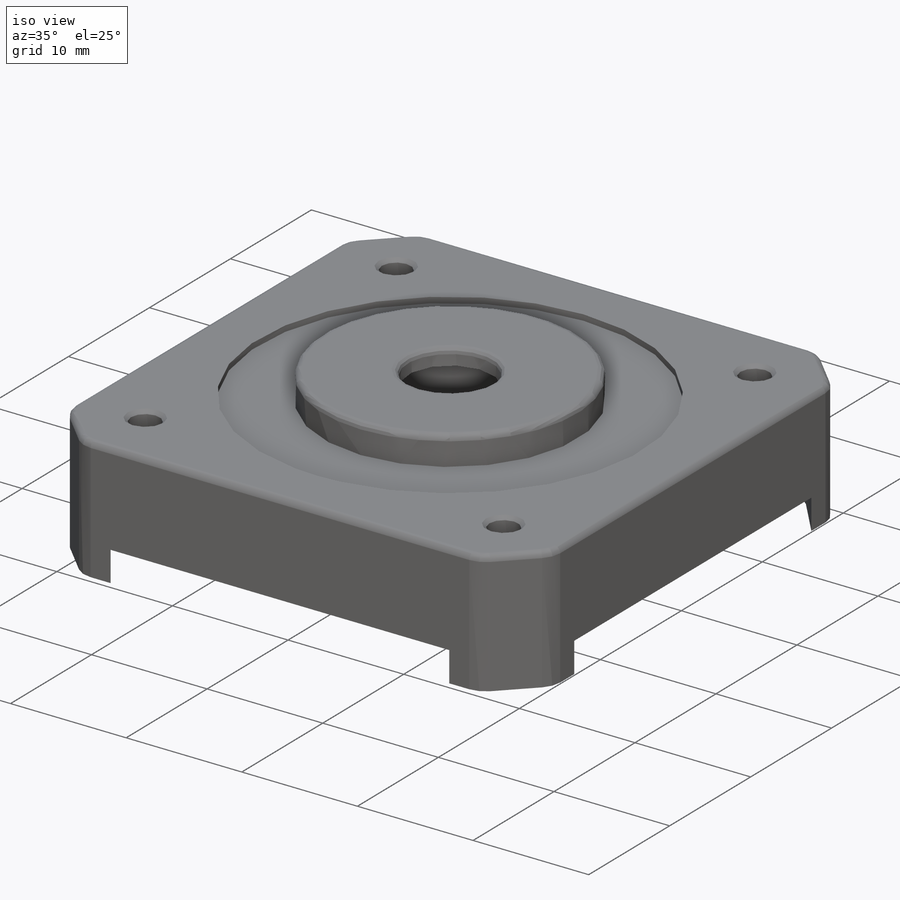
[diagram: iso view]
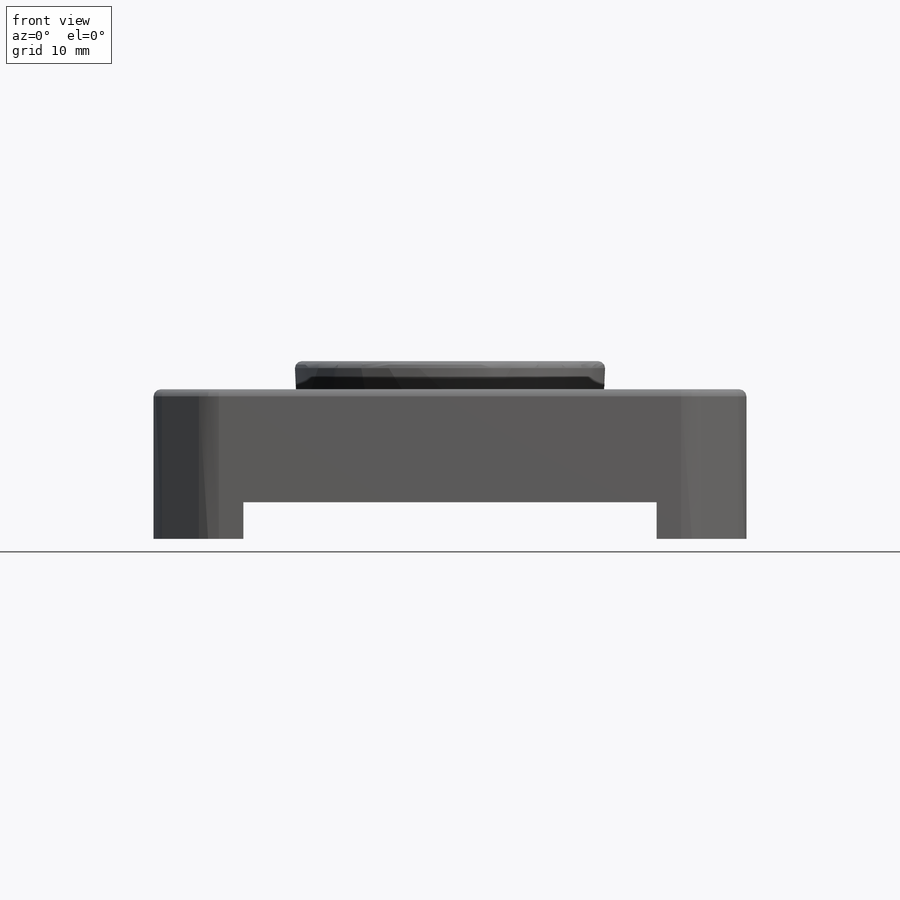
[diagram: front view]
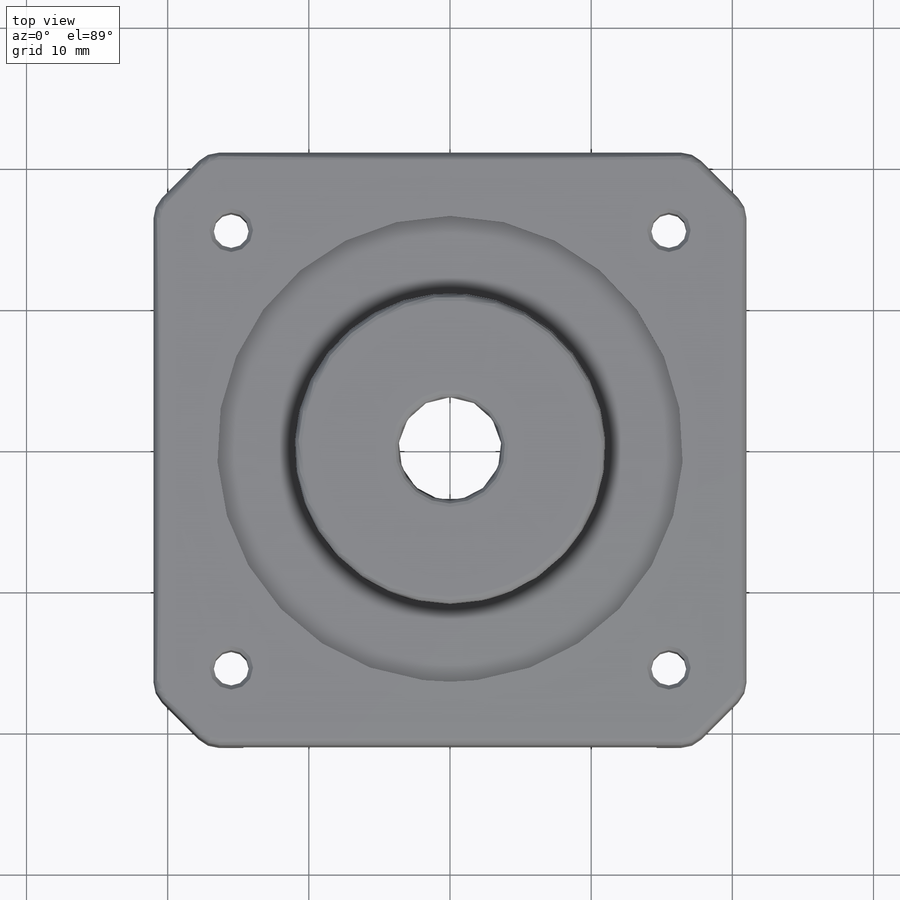
[diagram: top view]
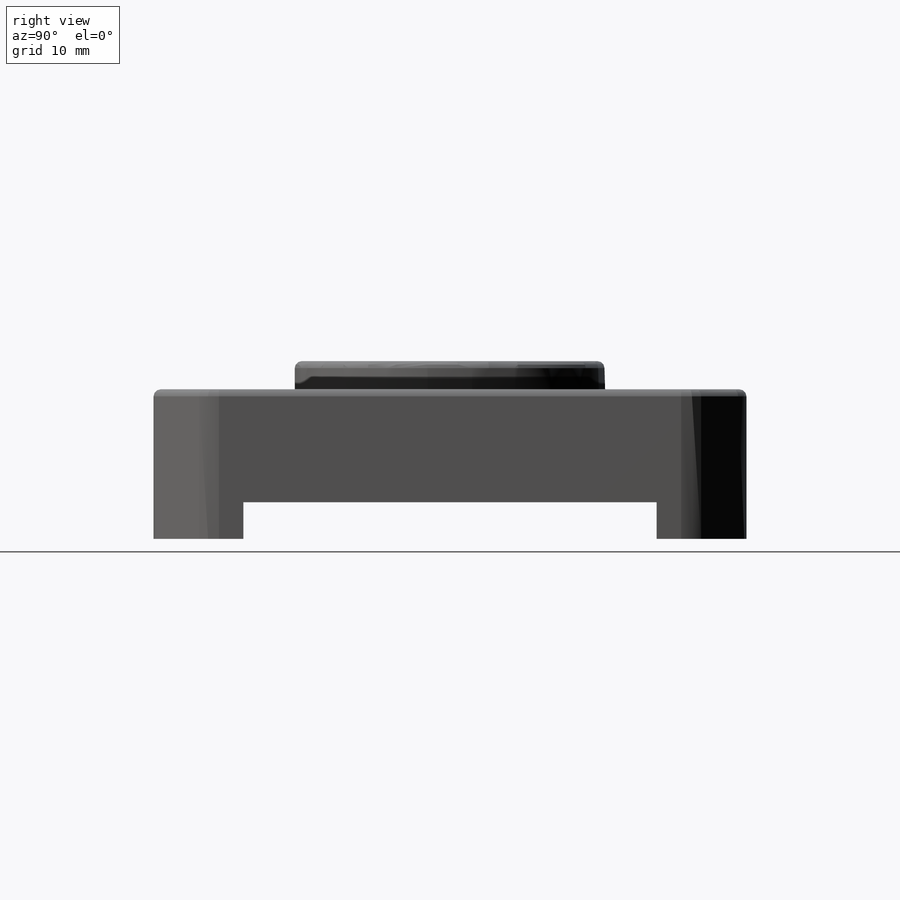
[diagram: right view]
SOLIDWORKS PART (.sldprt)
format: sldprt  version: not decoded by parser v0  size: 400,896 bytes
history: native  units: mm
features: sketch x5, extrude x4, plane x3, fillet x2, material x1, cut_extrude x1, chamfer x1 (+10 scaffold rows collapsed)
feature tree (27):
  scaffold x10  (default folders/planes/origin — collapsed)
  material  "Material <not specified>"
  plane  "Спереди"
  plane  "Сверху"
  plane  "Справа"
  sketch  "Эскиз1"  dims[c1.D9=2.5mm c1.D10=5.3mm c1.D11=7.3mm c1.D12=22.0mm c1.D13=33.0mm c1.D14=25.6mm c1.D17=4.5mm c1.D1=3.8mm c1.D2=3.8mm c1.D3=3.8mm c1.D4=3.8mm c1.D5=3.8mm c1.D6=3.8mm c1.D7=3.8mm c1.D8=3.8mm c1.D15=31.0mm c1.D16=42.0mm c2.D17=42.0mm]
  extrude  "Бобышка-Вытянуть1"  Depth=8mm
  extrude  "Бобышка-Вытянуть2"  [1 undecoded]
  sketch  "Эскиз1<3>"  dims[D1=7.5mm]
  extrude  "Бобышка-Вытянуть3"  [1 undecoded]
  sketch  "Эскиз1<4>"  dims[D1=10.0mm]
  extrude  "Бобышка-Вытянуть4"  [1 undecoded]
  sketch  "Эскиз1<5>"  dims[D1=2.6mm]
  sketch  "Эскиз2"  dims[D1=16.0mm]
  cut_extrude  "Вырез-Вытянуть1"  Depth=8.6mm
  fillet  "Скругление1"  Radius=2mm
  fillet  "Скругление2"  Radius=0.5mm
  chamfer  "Фаска1"  Distance=0.3mm Angle=45deg
decode coverage: 10 of 13 modeling features carry decoded parameters
note: 3 parameter values undecoded
summary: no parameter record found for 3 features
note: suppression state not decoded; provenance and decode notes live in map.json
